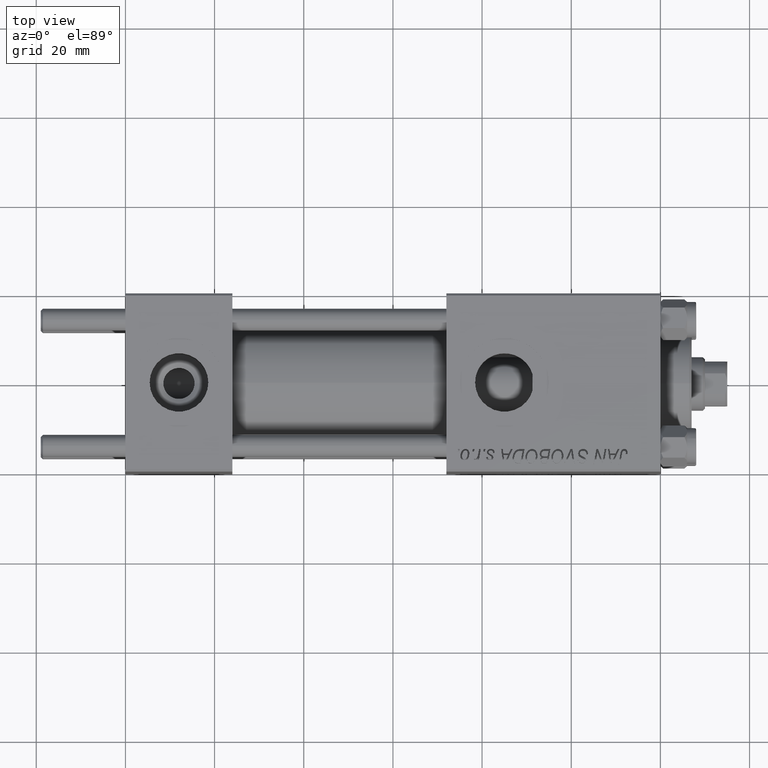
[diagram: clean part render]
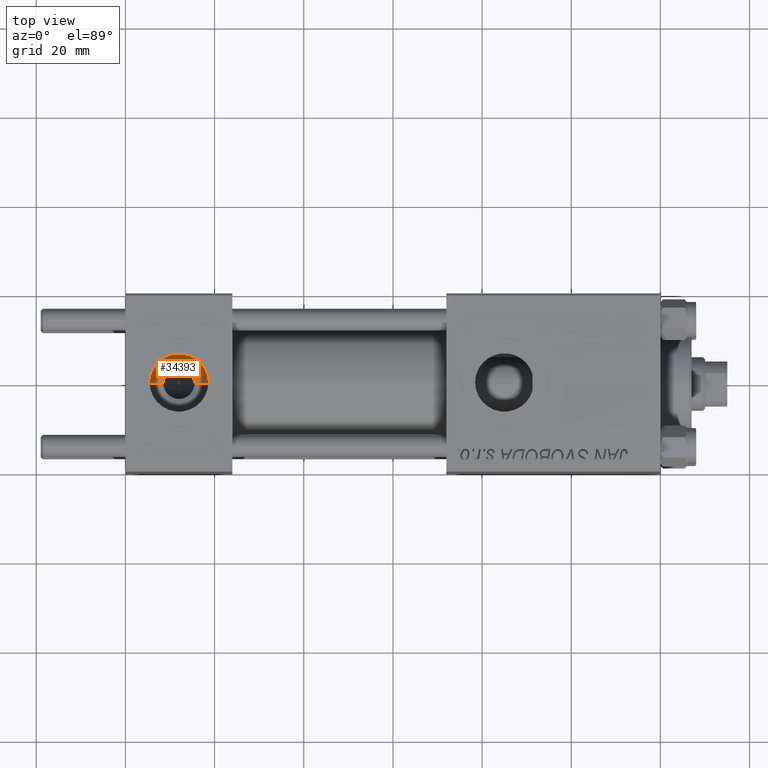
[diagram: same view with one face highlighted and labeled with its STEP entity id]
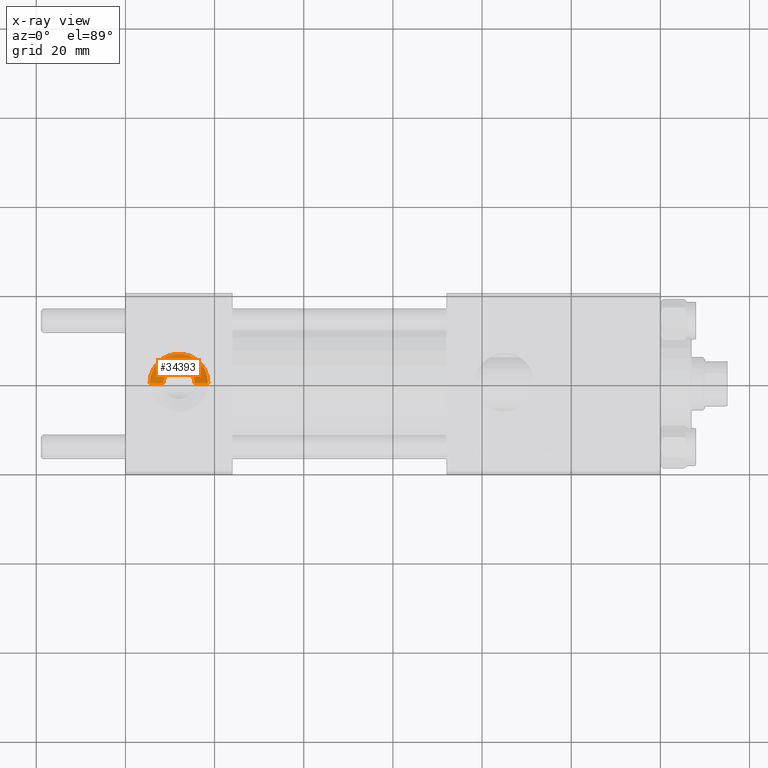
[diagram: x-ray of the same camera — body ghosted, the highlighted face saturated]
A machine part, top view. The second image highlights one B-rep face of the part: STEP entity #34393.
The next image is the same camera in x-ray: the body ghosted, the highlighted face saturated — about 0% of this face is hidden behind the body in this view.
In plain terms, the highlighted conical surface has half-angle 60.452 deg.
Its self-contained STEP definition (entity closure, byte-faithful):
#884 = EDGE_CURVE ( 'NONE', #42399, #2703, #25447, .T. ) ;
#2703 = VERTEX_POINT ( 'NONE', #27741 ) ;
#4156 = CARTESIAN_POINT ( 'NONE',  ( 8.500000000000000000, 4.286263797015751879E-16, 7.419999999999996376 ) ) ;
#4280 = CARTESIAN_POINT ( 'NONE',  ( 12.00000000000000000, 1.540743955509788682E-30, 7.419999999999996376 ) ) ;
#5759 = CARTESIAN_POINT ( 'NONE',  ( 12.00000000000000000, 1.540743955509788682E-30, 9.165987261146492315 ) ) ;
#6086 = AXIS2_PLACEMENT_3D ( 'NONE', #5759, #40851, #6255 ) ;
#6255 = DIRECTION ( 'NONE',  ( 1.000000000000000000, 0.000000000000000000, 0.000000000000000000 ) ) ;
#8568 = DIRECTION ( 'NONE',  ( 0.000000000000000000, 0.000000000000000000, 1.000000000000000000 ) ) ;
#9862 = AXIS2_PLACEMENT_3D ( 'NONE', #4280, #8568, #23956 ) ;
#11771 = ORIENTED_EDGE ( 'NONE', *, *, #42895, .F. ) ;
#13638 = EDGE_CURVE ( 'NONE', #39910, #2703, #47916, .T. ) ;
#17120 = ORIENTED_EDGE ( 'NONE', *, *, #13638, .T. ) ;
#18608 = DIRECTION ( 'NONE',  ( 0.000000000000000000, 0.000000000000000000, 1.000000000000000000 ) ) ;
#19542 = DIRECTION ( 'NONE',  ( -0.8699429503561852961, 1.065372849594507103E-16, 0.4931523731318503412 ) ) ;
#19915 = FACE_OUTER_BOUND ( 'NONE', #44256, .T. ) ;
#20336 = CONICAL_SURFACE ( 'NONE', #9862, 3.499999999999999556, 1.055086625138361267 ) ;
#23680 = VERTEX_POINT ( 'NONE', #40946 ) ;
#23956 = DIRECTION ( 'NONE',  ( 1.000000000000000000, 0.000000000000000000, 0.000000000000000000 ) ) ;
#24915 = DIRECTION ( 'NONE',  ( 0.8699429503561852961, 0.000000000000000000, 0.4931523731318503412 ) ) ;
#25447 = CIRCLE ( 'NONE', #6086, 6.579999999999999183 ) ;
#26252 = ORIENTED_EDGE ( 'NONE', *, *, #40290, .F. ) ;
#26525 = VECTOR ( 'NONE', #24915, 1000.000000000000000 ) ;
#27741 = CARTESIAN_POINT ( 'NONE',  ( 18.57999999999999829, 1.540743955509788682E-30, 9.165987261146492315 ) ) ;
#28719 = AXIS2_PLACEMENT_3D ( 'NONE', #45913, #18608, #37815 ) ;
#30432 = LINE ( 'NONE', #4156, #42315 ) ;
#34147 = CARTESIAN_POINT ( 'NONE',  ( 15.50000000000000000, 1.540743955509788682E-30, 7.419999999999996376 ) ) ;
#34393 = ADVANCED_FACE ( 'NONE', ( #19915 ), #20336, .F. ) ;
#35151 = CIRCLE ( 'NONE', #28719, 3.499999999999999556 ) ;
#37815 = DIRECTION ( 'NONE',  ( 1.000000000000000000, 0.000000000000000000, 0.000000000000000000 ) ) ;
#39907 = CARTESIAN_POINT ( 'NONE',  ( 5.420000000000000817, 8.058175938389596335E-16, 9.165987261146492315 ) ) ;
#39910 = VERTEX_POINT ( 'NONE', #34147 ) ;
#40290 = EDGE_CURVE ( 'NONE', #23680, #42399, #30432, .T. ) ;
#40579 = CARTESIAN_POINT ( 'NONE',  ( 15.50000000000000000, 1.540743955509788682E-30, 7.419999999999996376 ) ) ;
#40851 = DIRECTION ( 'NONE',  ( -0.000000000000000000, -0.000000000000000000, -1.000000000000000000 ) ) ;
#40946 = CARTESIAN_POINT ( 'NONE',  ( 8.500000000000000000, 4.286263797015752865E-16, 7.419999999999996376 ) ) ;
#42315 = VECTOR ( 'NONE', #19542, 1000.000000000000000 ) ;
#42399 = VERTEX_POINT ( 'NONE', #39907 ) ;
#42895 = EDGE_CURVE ( 'NONE', #39910, #23680, #35151, .T. ) ;
#44256 = EDGE_LOOP ( 'NONE', ( #26252, #11771, #17120, #45849 ) ) ;
#45849 = ORIENTED_EDGE ( 'NONE', *, *, #884, .F. ) ;
#45913 = CARTESIAN_POINT ( 'NONE',  ( 12.00000000000000000, 1.540743955509788682E-30, 7.419999999999996376 ) ) ;
#47916 = LINE ( 'NONE', #40579, #26525 ) ;